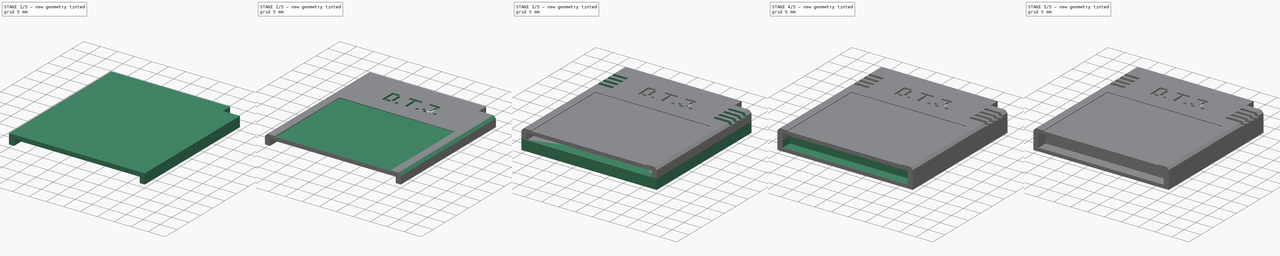
[diagram: build sequence overview — one tinted view per stage of 5, left to right]
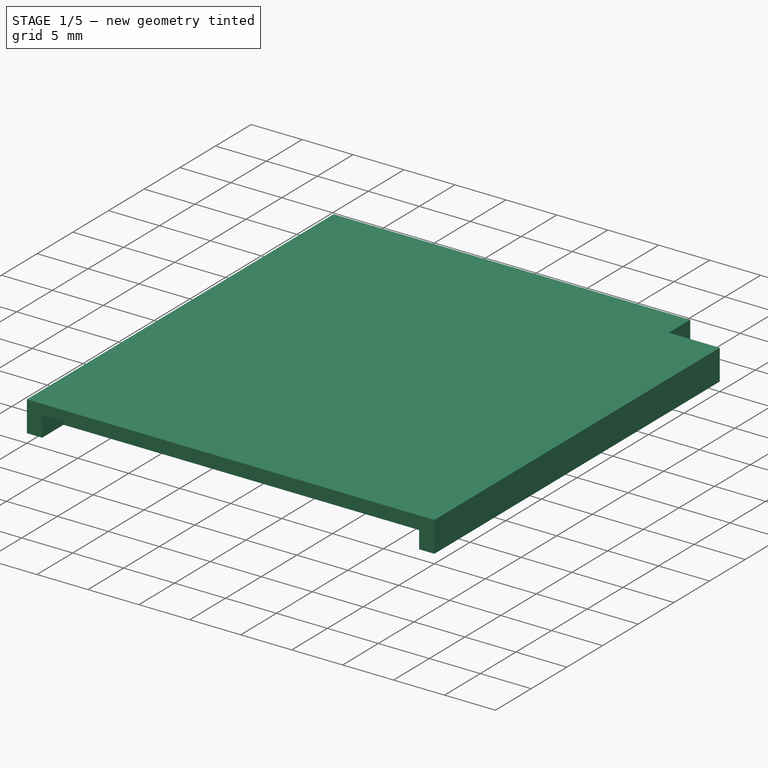
[diagram: stage 1 of 5 — iso view after this stage's code; geometry added in this stage tinted green]
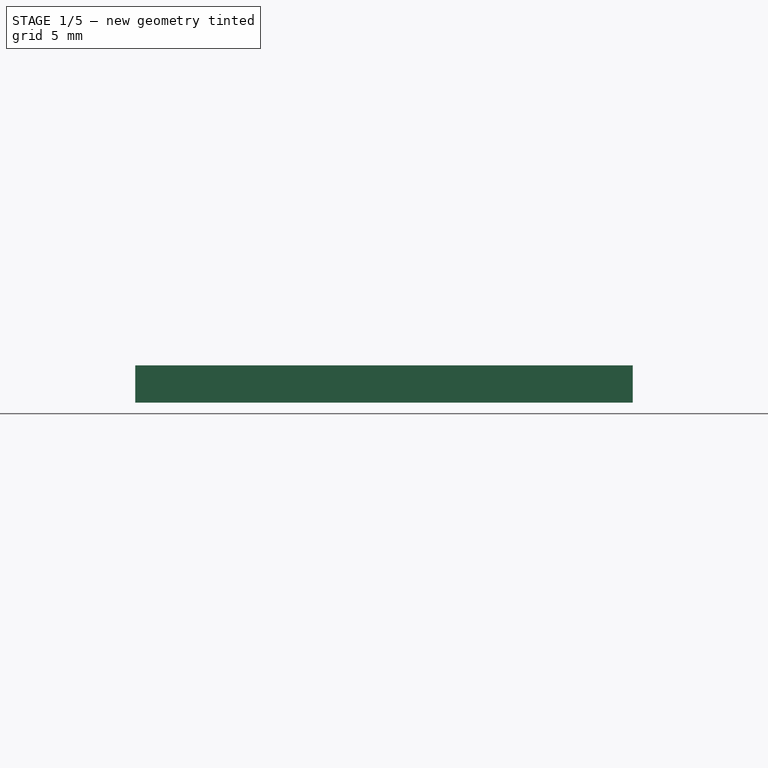
[diagram: stage 1 of 5 — front view after this stage's code; geometry added in this stage tinted green]
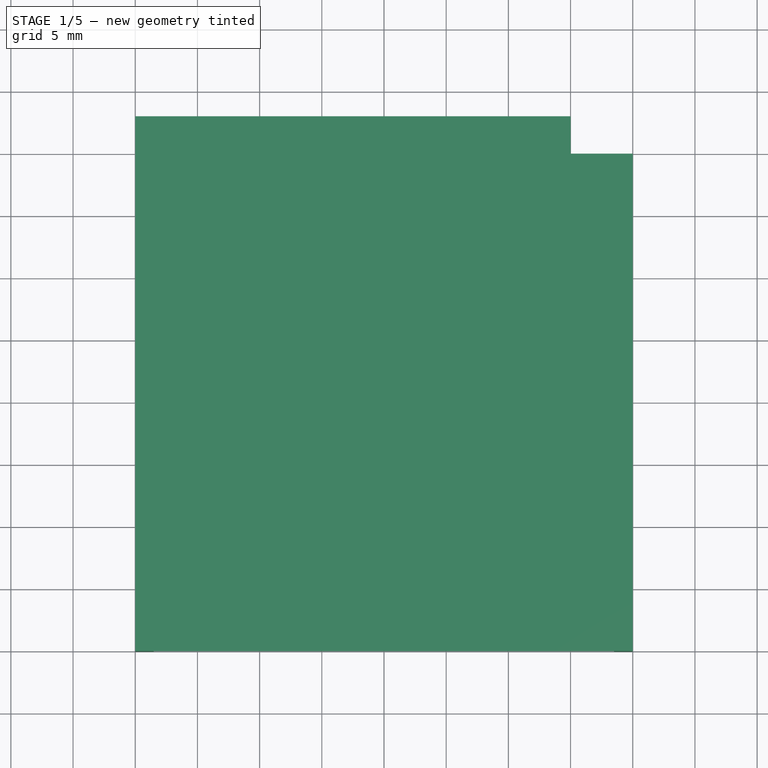
[diagram: stage 1 of 5 — top view after this stage's code; geometry added in this stage tinted green]
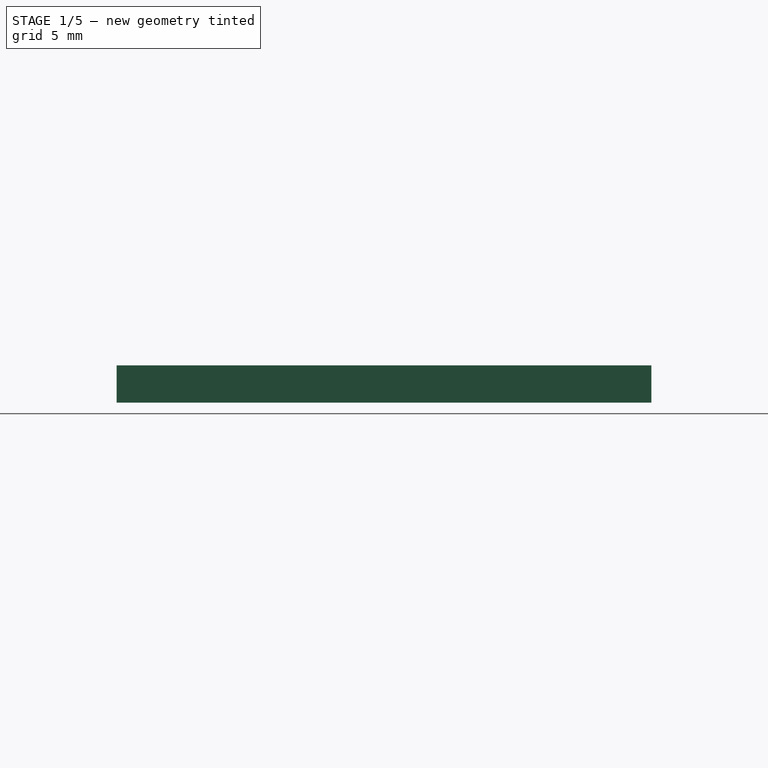
[diagram: stage 1 of 5 — right view after this stage's code; geometry added in this stage tinted green]
FCSTD DOCUMENT  (FreeCAD 0.16RUnknown)
Label: cartucho-pendrive
License: All rights reserved
LicenseURL: http://es.wikipedia.org/wiki/Todos_los_derechos_reservados
objects: Sketcher::SketchObject×14, PartDesign::Pocket×9, PartDesign::Pad×6, Drawing::FeatureViewPart×3, PartDesign::Chamfer×2, PartDesign::Fillet×1, Part::Part2DObjectPython×1, Part::Cut×1, Drawing::FeaturePage×1
note: 49 computed .brp shape members not serialized (recipe doc carries the construction recipe); baked Part::Feature solids carry a one-line shape summary decoded from their .brp

FEATURE [Sketcher::SketchObject] Sketch007
  Placement = pos=(0,0,3) rot=(0,0,1;0rad)
  sketch-geometry (8):
    g0: LineSegment StartX=0 StartY=0 StartZ=0 EndX=-20 EndY=0 EndZ=0
    g1: LineSegment StartX=-20 StartY=43 StartZ=0 EndX=15 EndY=43 EndZ=0
    g2: LineSegment StartX=15 StartY=43 StartZ=0 EndX=15 EndY=40 EndZ=0
    g3: LineSegment StartX=15 StartY=40 StartZ=0 EndX=20 EndY=40 EndZ=0
    g4: LineSegment StartX=20 StartY=40 StartZ=0 EndX=20 EndY=0 EndZ=0
    g5: LineSegment StartX=20 StartY=0 StartZ=0 EndX=0 EndY=0 EndZ=0
    g6: LineSegment StartX=-20 StartY=0 StartZ=0 EndX=-20 EndY=40 EndZ=0
    g7: LineSegment StartX=-20 StartY=40 StartZ=0 EndX=-20 EndY=43 EndZ=0
  constraints (23):
    c: Coincident(g-1,g0)
    c: Horizontal(g0)
    c: Horizontal(g1)
    c: Coincident(g1,g2)
    c: Coincident(g2,g3)
    c: Coincident(g3,g4)
    c: Vertical(g4)
    c: Coincident(g4,g5)
    c: Coincident(g5,g0)
    c: Horizontal(g5)
    c: Vertical(g2)
    c: Horizontal(g3)
    c: Symmetric(g0,g4,g-2)
    c: Coincident(g0,g6)
    c: Vertical(g6)
    c: Coincident(g6,g7)
    c: Coincident(g7,g1)
    c: Vertical(g7)
    c: Equal(g7,g2)
    c: DistanceX(g0,g0) = 20
    c: DistanceY(g2,g2) = 3
    c: DistanceX(g3,g3) = 5
    c: DistanceY(g4,g4) = 40
FEATURE [PartDesign::Pad] Pad003  label="Top-Base"
  Length = 3
  Length2 = 100
  Placement = pos=(0,0,3) rot=(0,0,1;0rad)
  Sketch = -> Sketch007
  Type = 0
FEATURE [Sketcher::SketchObject] Sketch008
  Placement = pos=(0,0,3) rot=(1,0,0;3.14159rad)
  Support = -> Pad003 [Face5]
  sketch-geometry (16):
    g0: LineSegment StartX=-7.5 StartY=-7.8 StartZ=0 EndX=7.5 EndY=-7.8 EndZ=0
    g1: LineSegment StartX=7.5 StartY=-7.8 StartZ=0 EndX=7.5 EndY=-31.5 EndZ=0
    g2: LineSegment StartX=7.5 StartY=-31.5 StartZ=0 EndX=6.5 EndY=-31.5 EndZ=0
    g3: LineSegment StartX=6.5 StartY=-31.5 StartZ=0 EndX=6.5 EndY=-32.2 EndZ=0
    g4: LineSegment StartX=6.5 StartY=-32.2 StartZ=0 EndX=7.5 EndY=-32.2 EndZ=0
    g5: LineSegment StartX=7.5 StartY=-32.2 StartZ=0 EndX=7.5 EndY=-41 EndZ=0
    g6: LineSegment StartX=-7.5 StartY=-41 StartZ=0 EndX=-7.5 EndY=-32.2 EndZ=0
    g7: LineSegment StartX=-7.5 StartY=-32.2 StartZ=0 EndX=-6.5 EndY=-32.2 EndZ=0
    g8: LineSegment StartX=-6.5 StartY=-32.2 StartZ=0 EndX=-6.5 EndY=-31.5 EndZ=0
    g9: LineSegment StartX=-6.5 StartY=-31.5 StartZ=0 EndX=-7.5 EndY=-31.5 EndZ=0
    g10: LineSegment StartX=-7.5 StartY=-31.5 StartZ=0 EndX=-7.5 EndY=-7.8 EndZ=0
    g11: LineSegment StartX=-7.5 StartY=-41 StartZ=0 EndX=-6.25 EndY=-41 EndZ=0
    g12: LineSegment StartX=-6.25 StartY=-41 StartZ=0 EndX=-6.25 EndY=-43 EndZ=0
    g13: LineSegment StartX=-6.25 StartY=-43 StartZ=0 EndX=6.25 EndY=-43 EndZ=0
    g14: LineSegment StartX=6.25 StartY=-43 StartZ=0 EndX=6.25 EndY=-41 EndZ=0
    g15: LineSegment StartX=6.25 StartY=-41 StartZ=0 EndX=7.5 EndY=-41 EndZ=0
  constraints (47):
    c: Coincident(g0,g1)
    c: Vertical(g1)
    c: Coincident(g1,g2)
    c: Horizontal(g2)
    c: Coincident(g2,g3)
    c: Vertical(g3)
    c: Coincident(g3,g4)
    c: Horizontal(g4)
    c: Coincident(g4,g5)
    c: Vertical(g5)
    c: Vertical(g6)
    c: Coincident(g6,g7)
    c: Horizontal(g7)
    c: Coincident(g7,g8)
    c: Coincident(g8,g9)
    c: Horizontal(g9)
    c: Coincident(g9,g10)
    c: Vertical(g10)
    c: Coincident(g0,g10)
    c: Symmetric(g0,g0,g-2)
    c: Symmetric(g2,g8,g-2)
    c: Symmetric(g5,g6,g-2)
    c: Equal(g7,g4)
    c: Equal(g9,g2)
    c: DistanceX(g0,g0) = 15
    c: DistanceY(g1,g1) = -23.7
    c: DistanceX(g4,g4) = 1
    c: DistanceY(g3,g3) = -0.7
    c: Equal(g3,g8)
    c: Equal(g1,g10)
    c: DistanceY(g6,g6) = -8.8
    c: Coincident(g11,g12)
    c: Vertical(g12)
    c: Coincident(g12,g13)
    c: Horizontal(g13)
    c: Coincident(g13,g14)
    c: Vertical(g14)
    c: Coincident(g14,g15)
    c: Coincident(g15,g5)
    c: Horizontal(g15)
    c: DistanceX(g13,g13) = 12.5
    c: Equal(g11,g15)
    c: Coincident(g6,g11)
    c: Horizontal(g11)
    c: DistanceY(g13,g5) = 2
    c: DistanceY(g12,g-1) = 43
    c: DistanceX(g6,g5) = 15
FEATURE [PartDesign::Pocket] Pocket004  label="Top-PCB-Hole"
  Length = 2
  Placement = pos=(0,0,3) rot=(0,0,1;0rad)
  Sketch = -> Sketch008
  Type = 0
FEATURE [PartDesign::Pocket] Pocket009
  Length = 2
  Placement = pos=(0,0,3) rot=(0,0,1;0rad)
  Sketch = -> Sketch009
  Type = 0
FEATURE [Sketcher::SketchObject] Sketch010
  Placement = pos=(0,0,3) rot=(1,0,0;3.14159rad)
  Support = -> Pocket009 [Face2]
  sketch-geometry (2):
    g0: Circle CenterX=-12.5 CenterY=-20 CenterZ=0 NormalX=0 NormalY=0 NormalZ=1 Radius=2
    g1: Circle CenterX=12.5 CenterY=-20 CenterZ=0 NormalX=0 NormalY=0 NormalZ=1 Radius=2
  constraints (5):
    c: Symmetric(g1,g0,g-2)
    c: Equal(g0,g1)
    c: Radius(g0) = 2
    c: DistanceX(g0,g1) = 25
    c: DistanceY(g1,g-1) = 20
FEATURE [PartDesign::Pocket] Pocket010
  Length = 1.5
  Placement = pos=(0,0,3) rot=(0,0,1;0rad)
  Sketch = -> Sketch010
  Type = 0
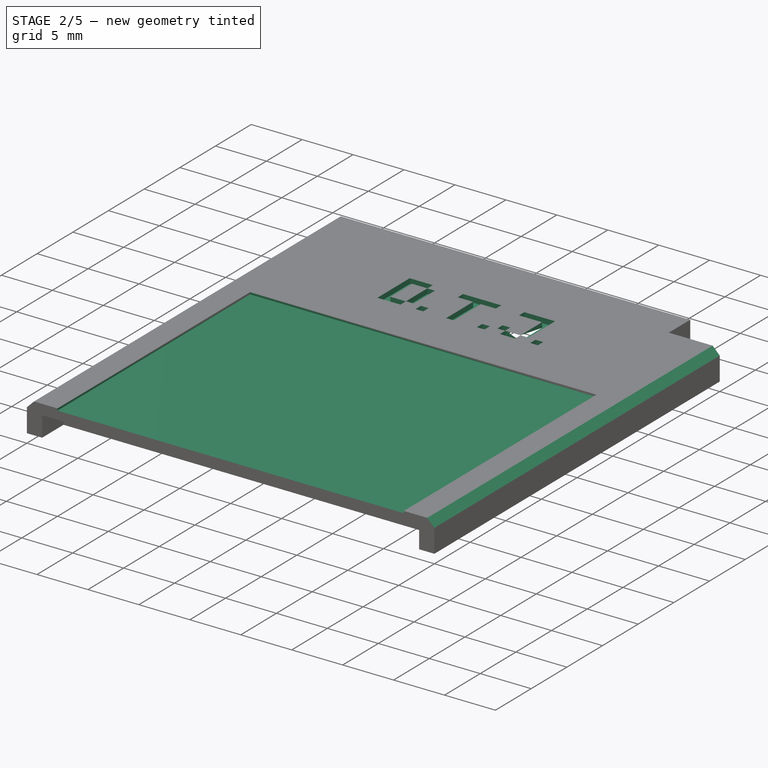
[diagram: stage 2 of 5 — iso view after this stage's code; geometry added in this stage tinted green]
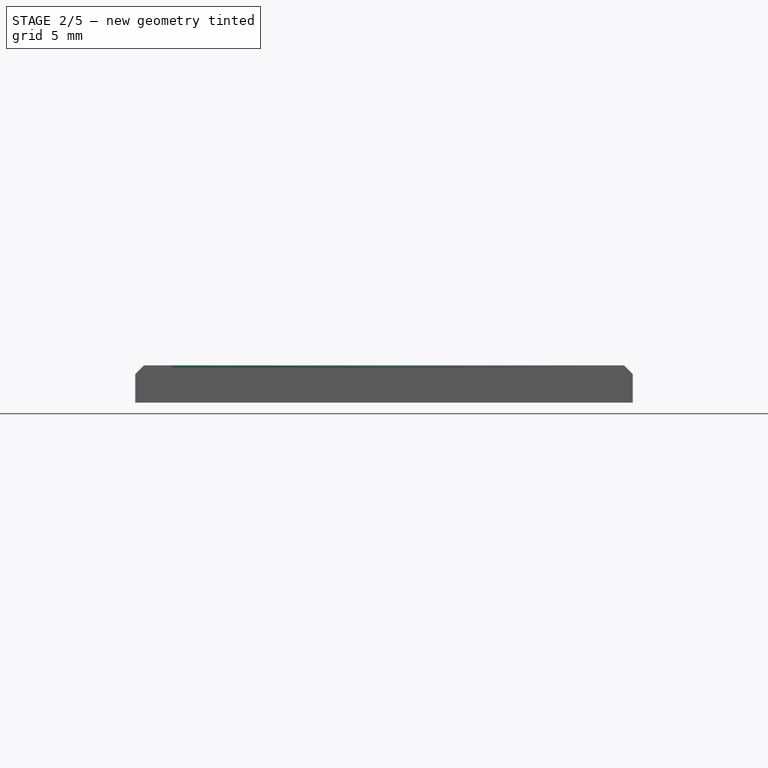
[diagram: stage 2 of 5 — front view after this stage's code; geometry added in this stage tinted green]
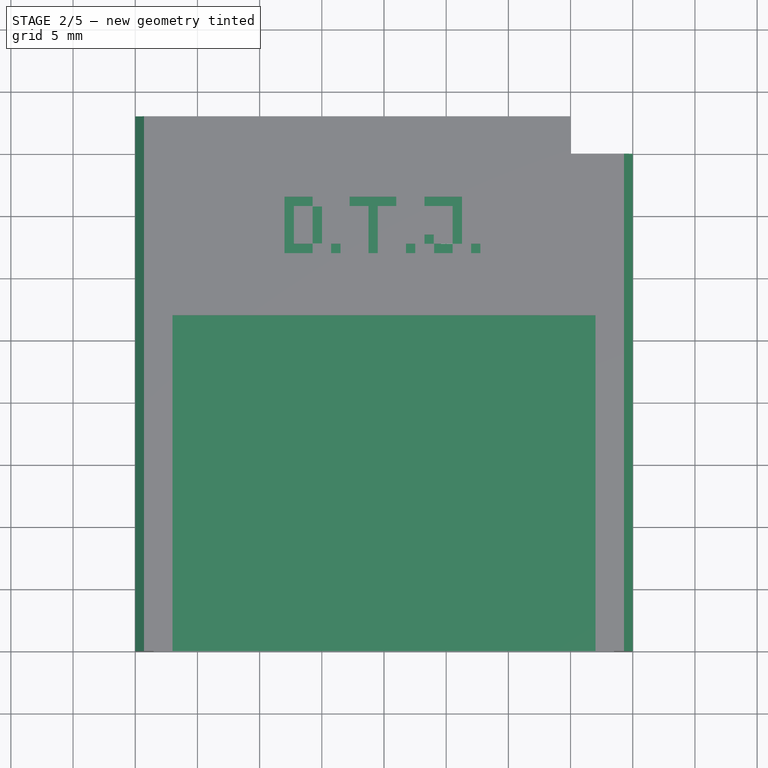
[diagram: stage 2 of 5 — top view after this stage's code; geometry added in this stage tinted green]
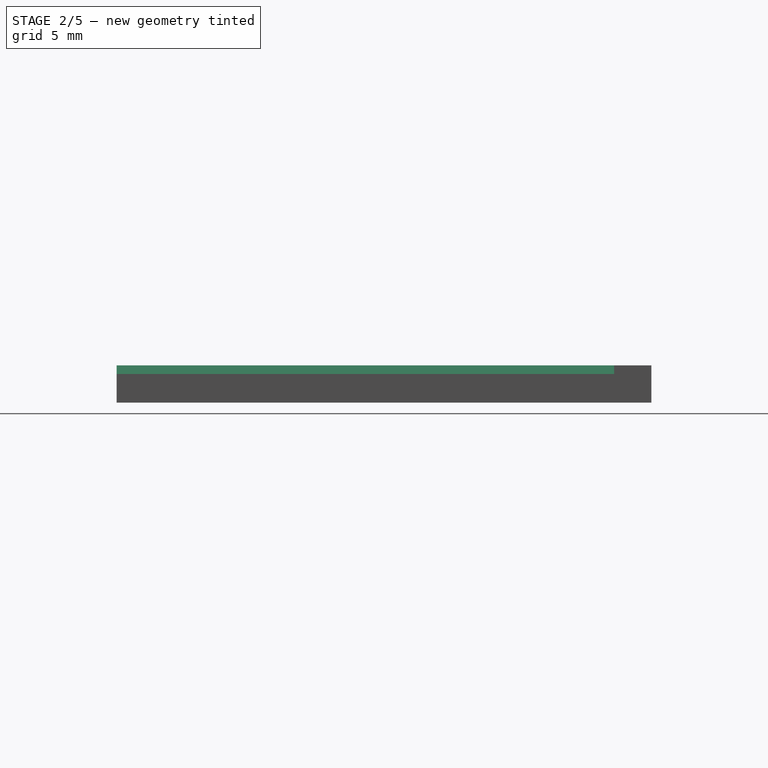
[diagram: stage 2 of 5 — right view after this stage's code; geometry added in this stage tinted green]
FEATURE [Sketcher::SketchObject] Sketch009
  Placement = pos=(0,0,3) rot=(1,0,0;3.14159rad)
  Support = -> Pocket004 [Face2]
  sketch-geometry (4):
    g0: LineSegment StartX=-18.5 StartY=0 StartZ=0 EndX=18.5 EndY=0 EndZ=0
    g1: LineSegment StartX=18.5 StartY=0 StartZ=0 EndX=18.5 EndY=-3 EndZ=0
    g2: LineSegment StartX=18.5 StartY=-3 StartZ=0 EndX=-18.5 EndY=-3 EndZ=0
    g3: LineSegment StartX=-18.5 StartY=-3 StartZ=0 EndX=-18.5 EndY=0 EndZ=0
  constraints (12):
    c: Coincident(g0,g1)
    c: Coincident(g1,g2)
    c: Coincident(g2,g3)
    c: Coincident(g3,g0)
    c: Horizontal(g0)
    c: Horizontal(g2)
    c: Vertical(g1)
    c: Vertical(g3)
    c: PointOnObject(g0,g-1)
    c: Symmetric(g1,g2,g-2)
    c: DistanceX(g2,g2) = 37
    c: DistanceY(g1,g1) = 3
FEATURE [Part::Part2DObjectPython] ShapeString  label="Text"  # Draft 2D object (typed FeaturePython)
  FontFile = <userpath>/.fonts/Pixeled.ttf
  Placement = pos=(-8,32,5.5) rot=(0,0,1;0rad)
  Size = 10
  String = D.T.J.
  Tracking = 0
FEATURE [PartDesign::Pad] Pad004
  Length = 1
  Length2 = 100
  Placement = pos=(-8,32,5.5) rot=(0,0,1;0rad)
  Sketch = -> ShapeString
  Type = 0
FEATURE [Part::Cut] Cut  label="Cut-Text"
  Base = -> Pocket010
  Tool = -> Pad004
FEATURE [Sketcher::SketchObject] Sketch012
  Placement = pos=(0,0,6) rot=(0,0,1;0rad)
  Support = -> Cut [Face7]
  sketch-geometry (4):
    g0: LineSegment StartX=-17 StartY=0 StartZ=0 EndX=17 EndY=0 EndZ=0
    g1: LineSegment StartX=17 StartY=0 StartZ=0 EndX=17 EndY=27 EndZ=0
    g2: LineSegment StartX=17 StartY=27 StartZ=0 EndX=-17 EndY=27 EndZ=0
    g3: LineSegment StartX=-17 StartY=27 StartZ=0 EndX=-17 EndY=0 EndZ=0
  constraints (12):
    c: Coincident(g0,g1)
    c: Coincident(g1,g2)
    c: Coincident(g2,g3)
    c: Coincident(g3,g0)
    c: Horizontal(g0)
    c: Horizontal(g2)
    c: Vertical(g1)
    c: Vertical(g3)
    c: PointOnObject(g0,g-1)
    c: DistanceY(g3,g3) = 27
    c: DistanceX(g2,g2) = 34
    c: Symmetric(g0,g0,g-2)
FEATURE [PartDesign::Pocket] Pocket011
  Length = 0.2
  Sketch = -> Sketch012
  Type = 0
FEATURE [PartDesign::Chamfer] Chamfer001
  Base = -> Pocket011 [Edge56,Edge54]
  Size = 0.7
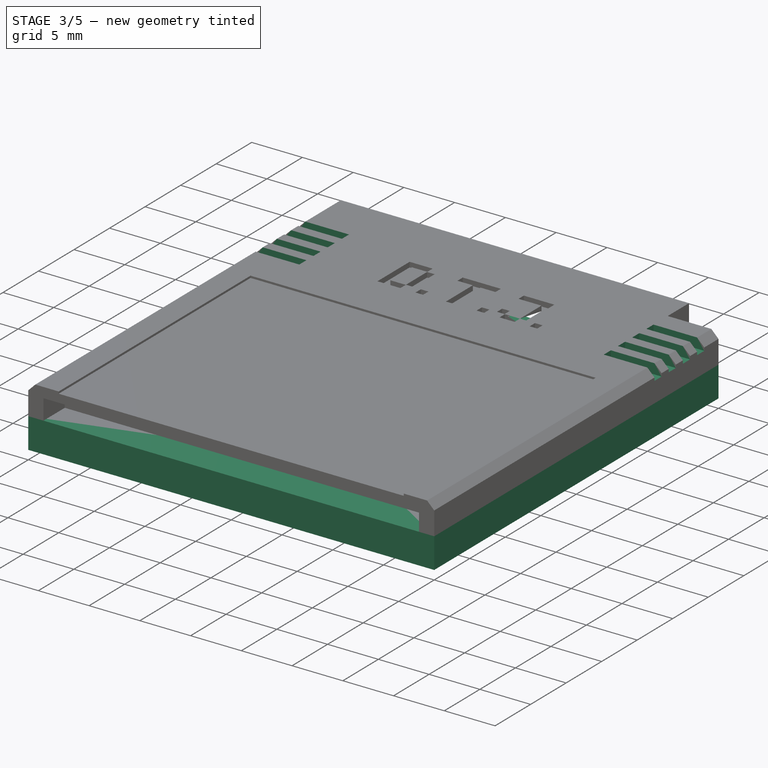
[diagram: stage 3 of 5 — iso view after this stage's code; geometry added in this stage tinted green]
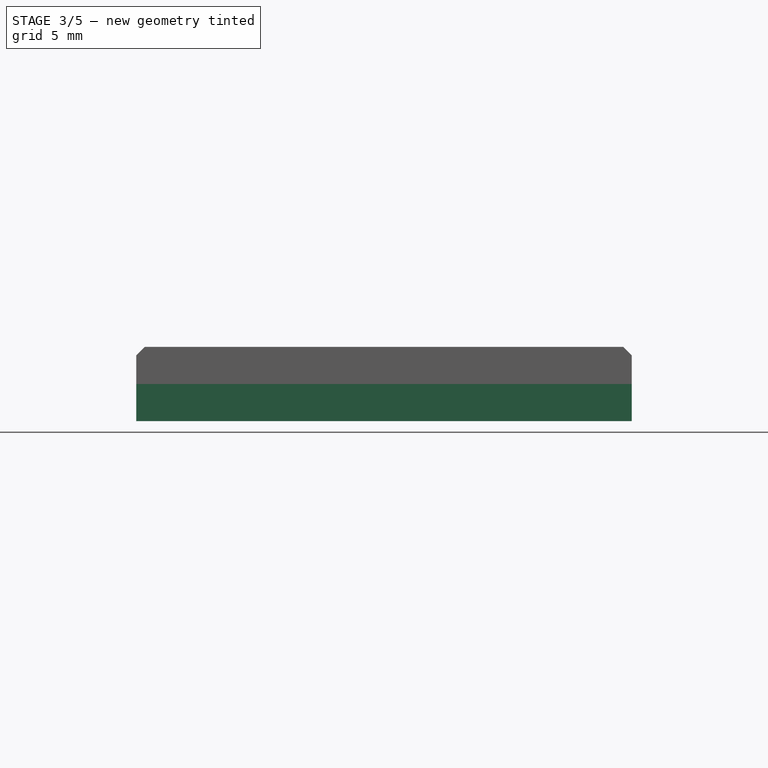
[diagram: stage 3 of 5 — front view after this stage's code; geometry added in this stage tinted green]
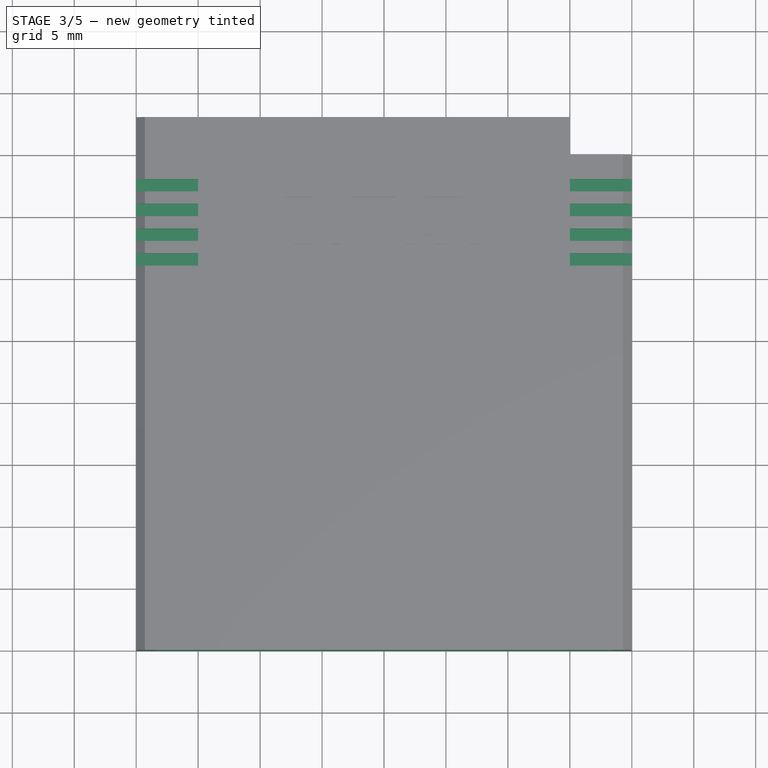
[diagram: stage 3 of 5 — top view after this stage's code; geometry added in this stage tinted green]
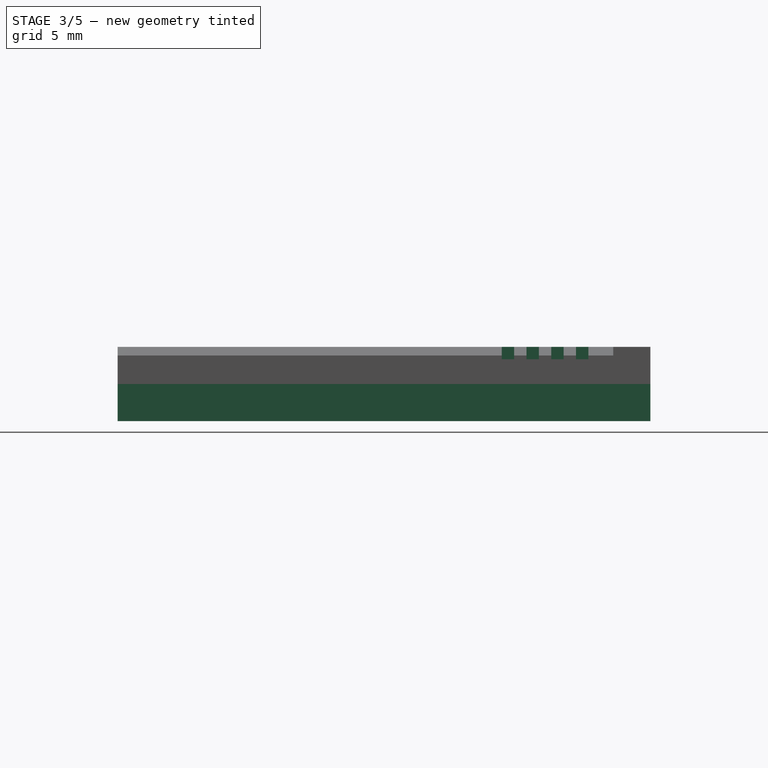
[diagram: stage 3 of 5 — right view after this stage's code; geometry added in this stage tinted green]
FEATURE [Sketcher::SketchObject] Sketch
  sketch-geometry (8):
    g0: LineSegment StartX=0 StartY=0 StartZ=0 EndX=-20 EndY=0 EndZ=0
    g1: LineSegment StartX=-20 StartY=43 StartZ=0 EndX=15 EndY=43 EndZ=0
    g2: LineSegment StartX=15 StartY=43 StartZ=0 EndX=15 EndY=40 EndZ=0
    g3: LineSegment StartX=15 StartY=40 StartZ=0 EndX=20 EndY=40 EndZ=0
    g4: LineSegment StartX=20 StartY=40 StartZ=0 EndX=20 EndY=0 EndZ=0
    g5: LineSegment StartX=20 StartY=0 StartZ=0 EndX=0 EndY=0 EndZ=0
    g6: LineSegment StartX=-20 StartY=0 StartZ=0 EndX=-20 EndY=40 EndZ=0
    g7: LineSegment StartX=-20 StartY=40 StartZ=0 EndX=-20 EndY=43 EndZ=0
  constraints (23):
    c: Coincident(g-1,g0)
    c: Horizontal(g0)
    c: Horizontal(g1)
    c: Coincident(g1,g2)
    c: Coincident(g2,g3)
    c: Coincident(g3,g4)
    c: Vertical(g4)
    c: Coincident(g4,g5)
    c: Coincident(g5,g0)
    c: Horizontal(g5)
    c: Vertical(g2)
    c: Horizontal(g3)
    c: Symmetric(g0,g4,g-2)
    c: Coincident(g0,g6)
    c: Vertical(g6)
    c: Coincident(g6,g7)
    c: Coincident(g7,g1)
    c: Vertical(g7)
    c: Equal(g7,g2)
    c: DistanceX(g0,g0) = 20
    c: DistanceY(g2,g2) = 3
    c: DistanceX(g3,g3) = 5
    c: DistanceY(g4,g4) = 40
FEATURE [PartDesign::Pad] Pad  label="Bottom-base"
  Length = 3
  Length2 = 100
  Sketch = -> Sketch
  Type = 0
FEATURE [Sketcher::SketchObject] Sketch001
  ExternalGeometry = -> [Pad]
  Placement = pos=(0,0,3) rot=(0,0,1;0rad)
  Support = -> Pad [Face6]
  sketch-geometry (16):
    g0: LineSegment StartX=-7.5 StartY=7.8 StartZ=0 EndX=7.5 EndY=7.8 EndZ=0
    g1: LineSegment StartX=7.5 StartY=7.8 StartZ=0 EndX=7.5 EndY=31.5 EndZ=0
    g2: LineSegment StartX=7.5 StartY=31.5 StartZ=0 EndX=6.5 EndY=31.5 EndZ=0
    g3: LineSegment StartX=6.5 StartY=31.5 StartZ=0 EndX=6.5 EndY=32.2 EndZ=0
    g4: LineSegment StartX=6.5 StartY=32.2 StartZ=0 EndX=7.5 EndY=32.2 EndZ=0
    g5: LineSegment StartX=7.5 StartY=32.2 StartZ=0 EndX=7.5 EndY=41 EndZ=0
    g6: LineSegment StartX=-7.5 StartY=41 StartZ=0 EndX=-7.5 EndY=32.2 EndZ=0
    g7: LineSegment StartX=-7.5 StartY=32.2 StartZ=0 EndX=-6.5 EndY=32.2 EndZ=0
    g8: LineSegment StartX=-6.5 StartY=32.2 StartZ=0 EndX=-6.5 EndY=31.5 EndZ=0
    g9: LineSegment StartX=-6.5 StartY=31.5 StartZ=0 EndX=-7.5 EndY=31.5 EndZ=0
    g10: LineSegment StartX=-7.5 StartY=31.5 StartZ=0 EndX=-7.5 EndY=7.8 EndZ=0
    g11: LineSegment StartX=-7.5 StartY=41 StartZ=0 EndX=-6.25 EndY=41 EndZ=0
    g12: LineSegment StartX=-6.25 StartY=41 StartZ=0 EndX=-6.25 EndY=43 EndZ=0
    g13: LineSegment StartX=-6.25 StartY=43 StartZ=0 EndX=6.25 EndY=43 EndZ=0
    g14: LineSegment StartX=6.25 StartY=43 StartZ=0 EndX=6.25 EndY=41 EndZ=0
    g15: LineSegment StartX=6.25 StartY=41 StartZ=0 EndX=7.5 EndY=41 EndZ=0
  constraints (47):
    c: Coincident(g0,g1)
    c: Vertical(g1)
    c: Coincident(g1,g2)
    c: Horizontal(g2)
    c: Coincident(g2,g3)
    c: Vertical(g3)
    c: Coincident(g3,g4)
    c: Horizontal(g4)
    c: Coincident(g4,g5)
    c: Vertical(g5)
    c: Vertical(g6)
    c: Coincident(g6,g7)
    c: Horizontal(g7)
    c: Coincident(g7,g8)
    c: Coincident(g8,g9)
    c: Horizontal(g9)
    c: Coincident(g9,g10)
    c: Vertical(g10)
    c: Coincident(g0,g10)
    c: Symmetric(g0,g0,g-2)
    c: Symmetric(g2,g8,g-2)
    c: Symmetric(g5,g6,g-2)
    c: Equal(g7,g4)
    c: Equal(g9,g2)
    c: DistanceX(g0,g0) = 15
    c: DistanceY(g1,g1) = 23.7
    c: DistanceX(g4,g4) = 1
    c: DistanceY(g3,g3) = 0.7
    c: Equal(g3,g8)
    c: Equal(g1,g10)
    c: DistanceY(g6,g6) = 8.8
    c: DistanceY(g5,g-3) = 2
    c: Coincident(g6,g11)
    c: Horizontal(g11)
    c: Coincident(g11,g12)
    c: PointOnObject(g12,g-3)
    c: Coincident(g12,g13)
    c: PointOnObject(g13,g-3)
    c: Coincident(g13,g14)
    c: Coincident(g14,g15)
    c: Coincident(g15,g5)
    c: Horizontal(g15)
    c: Vertical(g14)
    c: Vertical(g12)
    c: Equal(g11,g15)
    c: DistanceX(g6,g5) = 15
    c: DistanceX(g12,g13) = 12.5
FEATURE [PartDesign::Pocket] Pocket  label="Bottom-PCB-Hole"
  Length = 2.5
  Sketch = -> Sketch001
  Type = 0
FEATURE [Sketcher::SketchObject] Sketch014
  Placement = pos=(0,0,6) rot=(0,0,1;0rad)
  Support = -> Chamfer001 [Face2]
  sketch-geometry (32):
    g0: LineSegment StartX=-20 StartY=38 StartZ=0 EndX=-15 EndY=38 EndZ=0
    g1: LineSegment StartX=-15 StartY=38 StartZ=0 EndX=-15 EndY=37 EndZ=0
    g2: LineSegment StartX=-15 StartY=37 StartZ=0 EndX=-20 EndY=37 EndZ=0
    g3: LineSegment StartX=-20 StartY=37 StartZ=0 EndX=-20 EndY=38 EndZ=0
    g4: LineSegment StartX=-20 StartY=36 StartZ=0 EndX=-15 EndY=36 EndZ=0
    g5: LineSegment StartX=-15 StartY=36 StartZ=0 EndX=-15 EndY=35 EndZ=0
    g6: LineSegment StartX=-15 StartY=35 StartZ=0 EndX=-20 EndY=35 EndZ=0
    g7: LineSegment StartX=-20 StartY=35 StartZ=0 EndX=-20 EndY=36 EndZ=0
    g8: LineSegment StartX=-20 StartY=34 StartZ=0 EndX=-15 EndY=34 EndZ=0
    g9: LineSegment StartX=-15 StartY=34 StartZ=0 EndX=-15 EndY=33 EndZ=0
    g10: LineSegment StartX=-15 StartY=33 StartZ=0 EndX=-20 EndY=33 EndZ=0
    g11: LineSegment StartX=-20 StartY=33 StartZ=0 EndX=-20 EndY=34 EndZ=0
    g12: LineSegment StartX=-20 StartY=32 StartZ=0 EndX=-15 EndY=32 EndZ=0
    g13: LineSegment StartX=-15 StartY=32 StartZ=0 EndX=-15 EndY=31 EndZ=0
    g14: LineSegment StartX=-15 StartY=31 StartZ=0 EndX=-20 EndY=31 EndZ=0
    g15: LineSegment StartX=-20 StartY=31 StartZ=0 EndX=-20 EndY=32 EndZ=0
    g16: LineSegment StartX=15 StartY=38 StartZ=0 EndX=20 EndY=38 EndZ=0
    g17: LineSegment StartX=20 StartY=38 StartZ=0 EndX=20 EndY=37 EndZ=0
    g18: LineSegment StartX=20 StartY=37 StartZ=0 EndX=15 EndY=37 EndZ=0
    g19: LineSegment StartX=15 StartY=37 StartZ=0 EndX=15 EndY=38 EndZ=0
    g20: LineSegment StartX=15 StartY=36 StartZ=0 EndX=20 EndY=36 EndZ=0
    g21: LineSegment StartX=20 StartY=36 StartZ=0 EndX=20 EndY=35 EndZ=0
    g22: LineSegment StartX=20 StartY=35 StartZ=0 EndX=15 EndY=35 EndZ=0
    g23: LineSegment StartX=15 StartY=35 StartZ=0 EndX=15 EndY=36 EndZ=0
    g24: LineSegment StartX=15 StartY=34 StartZ=0 EndX=20 EndY=34 EndZ=0
    g25: LineSegment StartX=20 StartY=34 StartZ=0 EndX=20 EndY=33 EndZ=0
    g26: LineSegment StartX=20 StartY=33 StartZ=0 EndX=15 EndY=33 EndZ=0
    g27: LineSegment StartX=15 StartY=33 StartZ=0 EndX=15 EndY=34 EndZ=0
    g28: LineSegment StartX=15 StartY=32 StartZ=0 EndX=20 EndY=32 EndZ=0
    g29: LineSegment StartX=20 StartY=32 StartZ=0 EndX=20 EndY=31 EndZ=0
    g30: LineSegment StartX=20 StartY=31 StartZ=0 EndX=15 EndY=31 EndZ=0
    g31: LineSegment StartX=15 StartY=31 StartZ=0 EndX=15 EndY=32 EndZ=0
  constraints (92):
    c: Coincident(g0,g1)
    c: Coincident(g1,g2)
    c: Coincident(g2,g3)
    c: Coincident(g3,g0)
    c: Horizontal(g0)
    c: Horizontal(g2)
    c: Vertical(g1)
    c: Vertical(g3)
    c: Coincident(g4,g5)
    c: Coincident(g5,g6)
    c: Coincident(g6,g7)
    c: Coincident(g7,g4)
    c: Horizontal(g4)
    c: Horizontal(g6)
    c: Vertical(g5)
    c: Vertical(g7)
    c: Coincident(g8,g9)
    c: Coincident(g9,g10)
    c: Coincident(g10,g11)
    c: Coincident(g11,g8)
    c: Horizontal(g8)
    c: Horizontal(g10)
    c: Vertical(g9)
    c: Vertical(g11)
    c: Coincident(g12,g13)
    c: Coincident(g13,g14)
    c: Coincident(g14,g15)
    c: Coincident(g15,g12)
    c: Horizontal(g12)
    c: Horizontal(g14)
    c: Vertical(g13)
    c: Vertical(g15)
    c: Coincident(g16,g17)
    c: Coincident(g17,g18)
    c: Coincident(g18,g19)
    c: Coincident(g19,g16)
    c: Horizontal(g16)
    c: Horizontal(g18)
    c: Vertical(g17)
    c: Vertical(g19)
    c: Coincident(g20,g21)
    c: Coincident(g21,g22)
    c: Coincident(g22,g23)
    c: Coincident(g23,g20)
    c: Horizontal(g20)
    c: Horizontal(g22)
    c: Vertical(g21)
    c: Vertical(g23)
    c: Coincident(g24,g25)
    c: Coincident(g25,g26)
    c: Coincident(g26,g27)
    c: Coincident(g27,g24)
    c: Horizontal(g24)
    c: Horizontal(g26)
    c: Vertical(g25)
    c: Vertical(g27)
    c: Coincident(g28,g29)
    c: Coincident(g29,g30)
    c: Coincident(g30,g31)
    c: Coincident(g31,g28)
    c: Horizontal(g28)
    c: Horizontal(g30)
    c: Vertical(g29)
    c: Vertical(g31)
    c: Equal(g14,g10)
    c: Equal(g10,g6)
    c: Equal(g6,g2)
    c: Equal(g2,g18)
    c: Equal(g18,g22)
    c: Equal(g22,g26)
    c: Equal(g26,g30)
    c: Equal(g31,g27)
    c: Equal(g27,g23)
    c: Equal(g23,g19)
    c: Equal(g19,g1)
    c: Equal(g1,g5)
    c: Equal(g5,g9)
    c: Equal(g9,g13)
    c: Symmetric(g13,g30,g-2)
    c: Symmetric(g9,g26,g-2)
    c: Symmetric(g5,g22,g-2)
    c: Symmetric(g1,g18,g-2)
    c: DistanceX(g0,g0) = 5
    c: DistanceY(g3,g3) = 1
    c: DistanceY(g4,g2) = 1
    c: DistanceY(g8,g6) = 1
    c: DistanceY(g12,g10) = 1
    c: DistanceX(g10,g12) = 0
    c: DistanceX(g8,g6) = 0
    c: DistanceX(g2,g4) = 0
    c: DistanceY(g-1,g14) = 31
    c: DistanceX(g0,g16) = 40
FEATURE [PartDesign::Pocket] Pocket012  label="TOP"
  Length = 1
  Sketch = -> Sketch014
  Type = 0
FEATURE [Drawing::FeatureViewPart] View
  Direction = (1,1,1)
  HiddenWidth = 0.15
  LineWidth = 0.35
  Rotation = 0
  Scale = 2
  ShowHiddenLines = false
  ShowSmoothLines = false
  Source = -> Pad005
  Tolerance = 0.05
  ViewResult = <blob: 5404 chars omitted>
  Visible = true
  X = 140
  Y = 150
FEATURE [Drawing::FeatureViewPart] View001
  Direction = (1,1,1)
  HiddenWidth = 0.15
  LineWidth = 0.35
  Rotation = 0
  Scale = 2
  ShowHiddenLines = false
  ShowSmoothLines = true
  Source = -> Pocket012
  Tolerance = 0.05
  ViewResult = <blob: 12083 chars omitted>
  Visible = true
  X = 80
  Y = 150
FEATURE [Drawing::FeatureViewPart] View002
  Direction = (0,0,1)
  HiddenWidth = 0.15
  LineWidth = 0.35
  Rotation = 0
  Scale = 3
  ShowHiddenLines = false
  ShowSmoothLines = false
  Source = -> Pocket012
  Tolerance = 0.05
  ViewResult = <blob: 7609 chars omitted>
  Visible = true
  X = 300
  Y = 200
FEATURE [Drawing::FeaturePage] Page
  EditableTexts = AUTHOR NAME | CREATION DATE | SUPERVISOR NAME | CHECK DATE | SCALE | WEIGHT | NUMBER | SHEET | TITLE | SUBTITLE
  Group = -> [View,View001,View002]
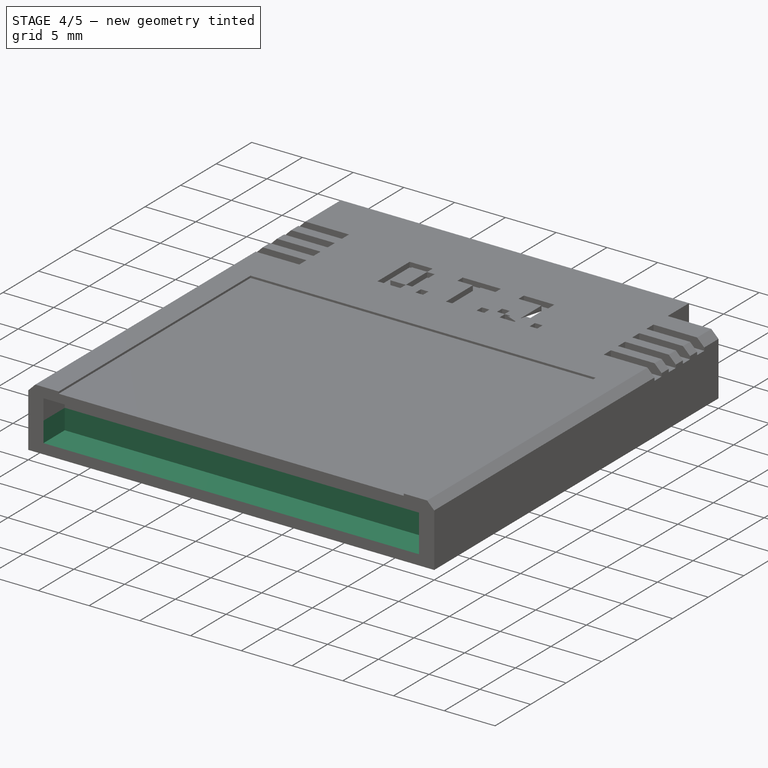
[diagram: stage 4 of 5 — iso view after this stage's code; geometry added in this stage tinted green]
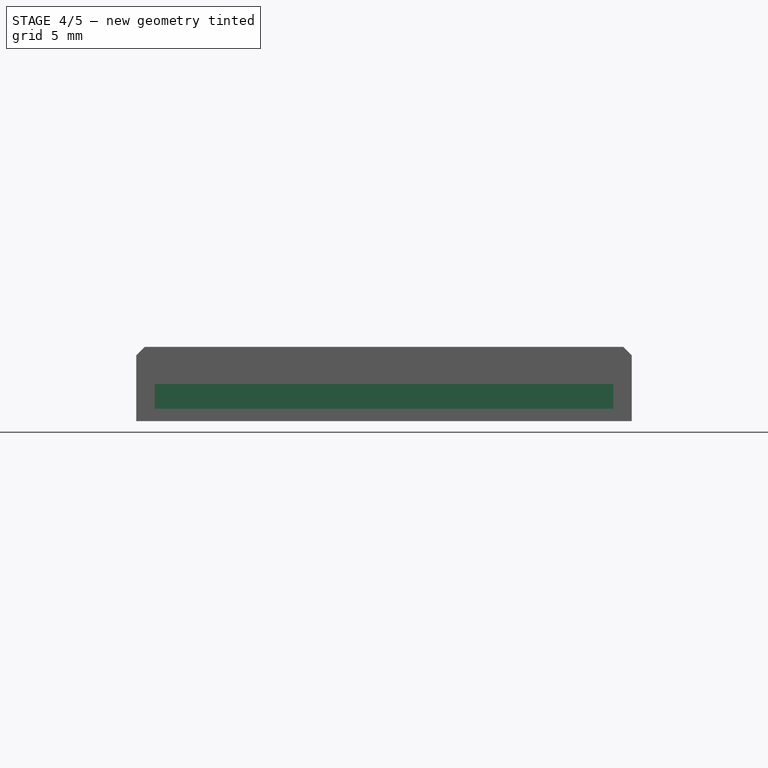
[diagram: stage 4 of 5 — front view after this stage's code; geometry added in this stage tinted green]
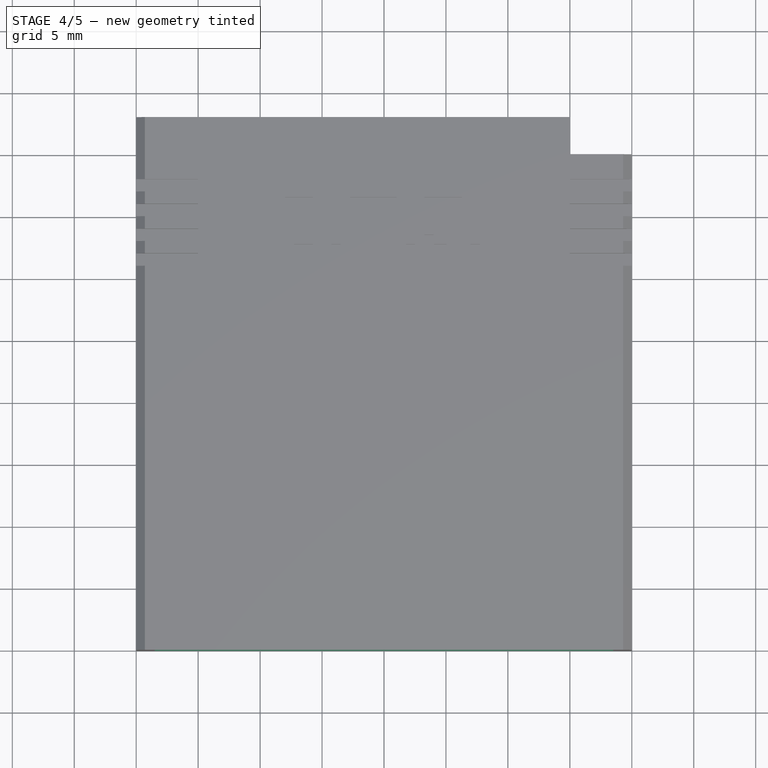
[diagram: stage 4 of 5 — top view after this stage's code; geometry added in this stage tinted green]
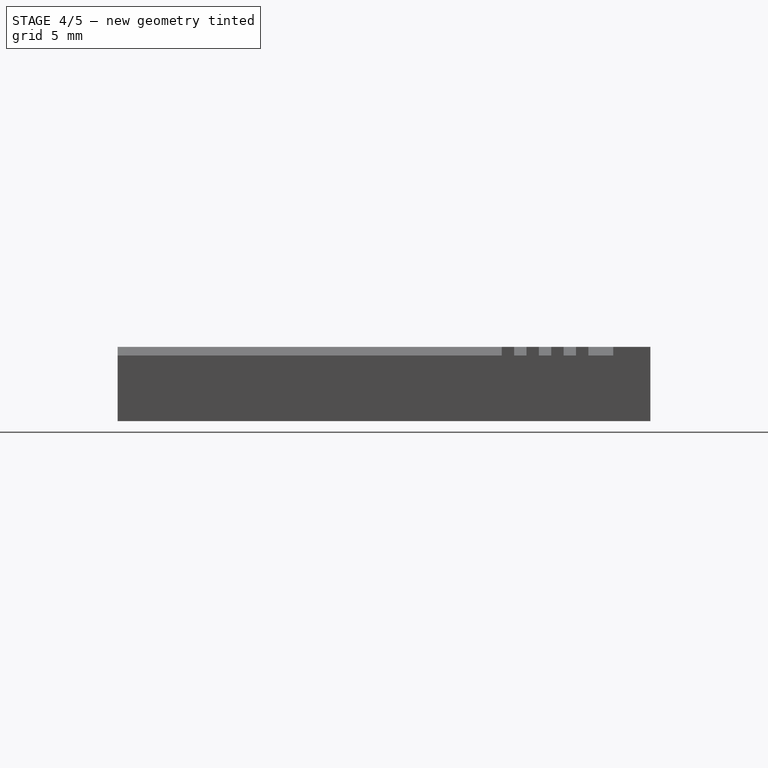
[diagram: stage 4 of 5 — right view after this stage's code; geometry added in this stage tinted green]
FEATURE [Sketcher::SketchObject] Sketch002
  Placement = pos=(0,0,3) rot=(0,0,1;0rad)
  Support = -> Pocket [Face4]
  sketch-geometry (4):
    g0: LineSegment StartX=-18.5 StartY=0 StartZ=0 EndX=18.5 EndY=0 EndZ=0
    g1: LineSegment StartX=18.5 StartY=0 StartZ=0 EndX=18.5 EndY=3 EndZ=0
    g2: LineSegment StartX=18.5 StartY=3 StartZ=0 EndX=-18.5 EndY=3 EndZ=0
    g3: LineSegment StartX=-18.5 StartY=3 StartZ=0 EndX=-18.5 EndY=0 EndZ=0
  constraints (12):
    c: Coincident(g0,g1)
    c: Coincident(g1,g2)
    c: Coincident(g2,g3)
    c: Coincident(g3,g0)
    c: Horizontal(g0)
    c: Horizontal(g2)
    c: Vertical(g1)
    c: Vertical(g3)
    c: PointOnObject(g0,g-1)
    c: DistanceX(g0,g0) = 37
    c: DistanceY(g3,g3) = 3
    c: Symmetric(g2,g1,g-2)
FEATURE [PartDesign::Pocket] Pocket001
  Length = 2
  Sketch = -> Sketch002
  Type = 0
FEATURE [Sketcher::SketchObject] Sketch003
  Placement = pos=(0,0,3) rot=(0,0,1;0rad)
  Support = -> Pocket001 [Face4]
  sketch-geometry (2):
    g0: Circle CenterX=-12.5 CenterY=20 CenterZ=0 NormalX=0 NormalY=0 NormalZ=1 Radius=1.8
    g1: Circle CenterX=12.5 CenterY=20 CenterZ=0 NormalX=0 NormalY=0 NormalZ=1 Radius=1.8
  constraints (5):
    c: Symmetric(g0,g1,g-2)
    c: Equal(g0,g1)
    c: Radius(g0) = 1.8
    c: DistanceX(g0,g1) = 25
    c: DistanceY(g-1,g0) = 20
FEATURE [PartDesign::Pad] Pad001
  Length = 1
  Length2 = 100
  Sketch = -> Sketch003
  Type = 0
FEATURE [Sketcher::SketchObject] Sketch004
  Placement = pos=(0,0,0) rot=(1,0,0;3.14159rad)
  Support = -> Pad001 [Face2]
  sketch-geometry (1):
    g0: Circle CenterX=0 CenterY=-20 CenterZ=0 NormalX=0 NormalY=0 NormalZ=1 Radius=2
  constraints (3):
    c: PointOnObject(g0,g-2)
    c: Radius(g0) = 2
    c: DistanceY(g0,g-1) = 20
FEATURE [PartDesign::Pocket] Pocket002
  Length = 0.2
  Sketch = -> Sketch004
  Type = 0
FEATURE [Sketcher::SketchObject] Sketch005
  Placement = pos=(-6.5,0,0) rot=(0.57735,0.57735,0.57735;2.0944rad)
  Support = -> Pocket002 [Face28]
  sketch-geometry (1):
    g0: Circle CenterX=0 CenterY=-20 CenterZ=0 NormalX=0 NormalY=0 NormalZ=1 Radius=1.2
  constraints (3):
    c: PointOnObject(g0,g-2)
    c: Radius(g0) = 1.2
    c: DistanceY(g0,g-1) = 20
FEATURE [PartDesign::Pad] Pad002
  Length = 0.2
  Length2 = 100
  Sketch = -> Sketch005
  Type = 0
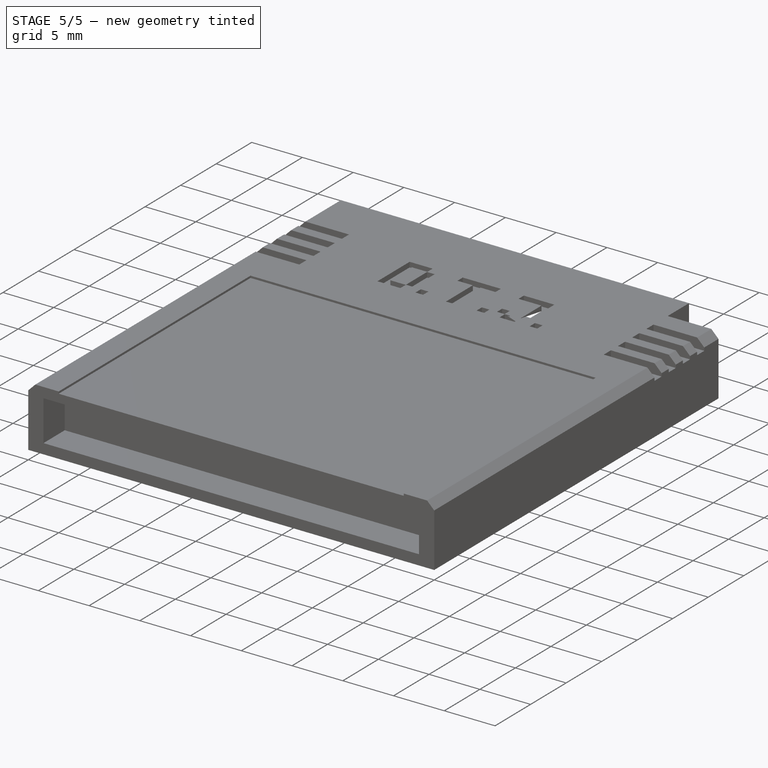
[diagram: stage 5 of 5 — iso view after this stage's code; geometry added in this stage tinted green]
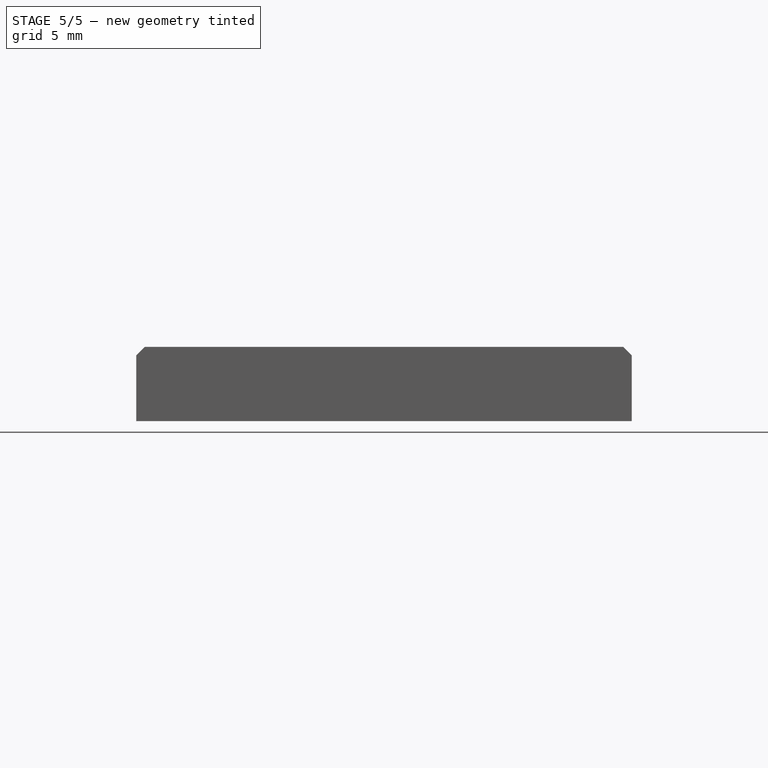
[diagram: stage 5 of 5 — front view after this stage's code; geometry added in this stage tinted green]
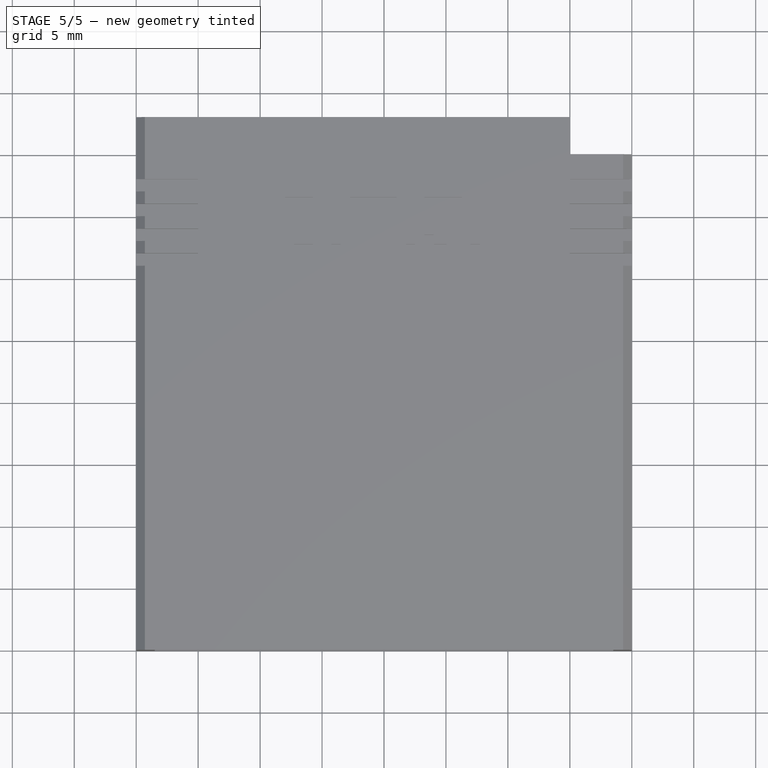
[diagram: stage 5 of 5 — top view after this stage's code; geometry added in this stage tinted green]
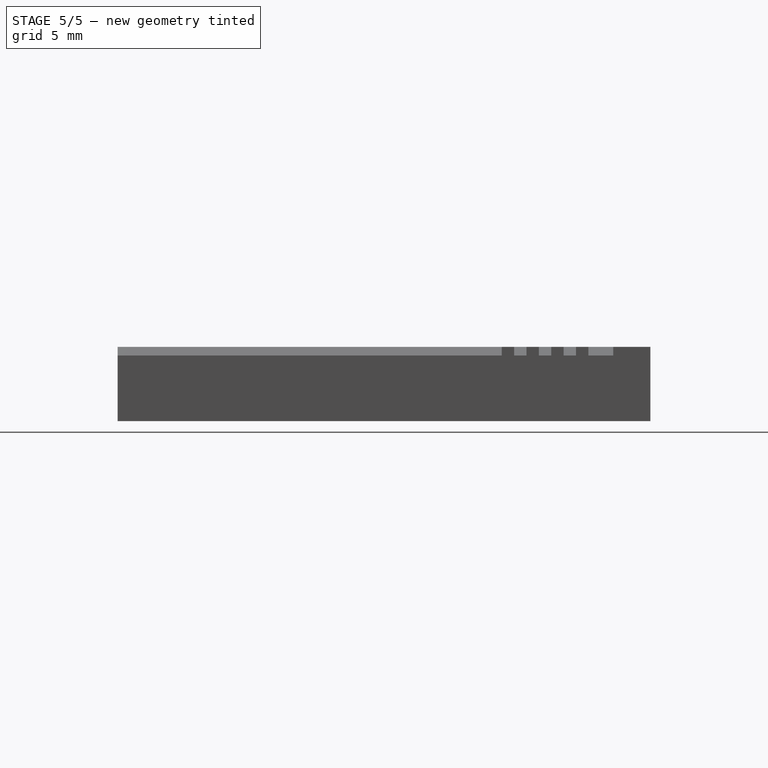
[diagram: stage 5 of 5 — right view after this stage's code; geometry added in this stage tinted green]
FEATURE [PartDesign::Fillet] Fillet
  Base = -> Pad002 [Edge78]
  Radius = 0.19
FEATURE [Sketcher::SketchObject] Sketch006
  Placement = pos=(7.5,0,0) rot=(0.57735,-0.57735,-0.57735;2.0944rad)
  Support = -> Fillet [Face4]
  sketch-geometry (12):
    g0: LineSegment StartX=-0.75 StartY=-19.75 StartZ=0 EndX=-0.25 EndY=-19.75 EndZ=0
    g1: LineSegment StartX=0.75 StartY=-19.75 StartZ=0 EndX=0.75 EndY=-20.25 EndZ=0
    g2: LineSegment StartX=0.75 StartY=-20.25 StartZ=0 EndX=0.25 EndY=-20.25 EndZ=0
    g3: LineSegment StartX=-0.75 StartY=-20.25 StartZ=0 EndX=-0.75 EndY=-19.75 EndZ=0
    g4: LineSegment StartX=-0.25 StartY=-19.25 StartZ=0 EndX=0.25 EndY=-19.25 EndZ=0
    g5: LineSegment StartX=0.25 StartY=-19.25 StartZ=0 EndX=0.25 EndY=-19.75 EndZ=0
    g6: LineSegment StartX=0.25 StartY=-20.75 StartZ=0 EndX=-0.25 EndY=-20.75 EndZ=0
    g7: LineSegment StartX=-0.25 StartY=-20.75 StartZ=0 EndX=-0.25 EndY=-20.25 EndZ=0
    g8: LineSegment StartX=0.25 StartY=-19.75 StartZ=0 EndX=0.75 EndY=-19.75 EndZ=0
    g9: LineSegment StartX=-0.25 StartY=-19.75 StartZ=0 EndX=-0.25 EndY=-19.25 EndZ=0
    g10: LineSegment StartX=-0.25 StartY=-20.25 StartZ=0 EndX=-0.75 EndY=-20.25 EndZ=0
    g11: LineSegment StartX=0.25 StartY=-20.25 StartZ=0 EndX=0.25 EndY=-20.75 EndZ=0
  constraints (34):
    c: Coincident(g8,g1)
    c: Coincident(g1,g2)
    c: Coincident(g10,g3)
    c: Coincident(g3,g0)
    c: Horizontal(g0)
    c: Horizontal(g2)
    c: Vertical(g1)
    c: Vertical(g3)
    c: Coincident(g4,g5)
    c: Coincident(g11,g6)
    c: Coincident(g6,g7)
    c: Coincident(g9,g4)
    c: Horizontal(g4)
    c: Horizontal(g6)
    c: Vertical(g5)
    c: Vertical(g7)
    c: Equal(g3,g4)
    c: Equal(g0,g5)
    c: Symmetric(g10,g1,g-2)
    c: Symmetric(g4,g4,g-2)
    c: DistanceY(g3,g3) = 0.5
    c: DistanceY(g7,g9) = 1.5
    c: Tangent(g0,g8)
    c: Coincident(g9,g0)
    c: Tangent(g7,g9)
    c: Coincident(g10,g7)
    c: Tangent(g2,g10)
    c: Coincident(g5,g8)
    c: Coincident(g11,g2)
    c: Tangent(g5,g11)
    c: DistanceX(g3,g1) = 1.5
    c: Equal(g7,g9)
    c: Equal(g10,g2)
    c: DistanceY(g5,g-1) = 19.75
FEATURE [PartDesign::Pocket] Pocket003
  Length = 0.2
  Sketch = -> Sketch006
  Type = 0
FEATURE [PartDesign::Chamfer] Chamfer  label="Chamfer002"
  Base = -> Pocket003 [Edge85,Edge87]
  Size = 0.5
FEATURE [Sketcher::SketchObject] Sketch013
  ExternalGeometry = -> [Chamfer]
  Placement = pos=(0,0,0.2) rot=(1,0,0;3.14159rad)
  Support = -> Chamfer [Face37]
  sketch-geometry (1):
    g0: Circle CenterX=0 CenterY=-20 CenterZ=0 NormalX=0 NormalY=0 NormalZ=1 Radius=1.2
  constraints (3):
    c: PointOnObject(g0,g-2)
    c: Coincident(g0,g-3)
    c: Radius(g0) = 1.2
FEATURE [PartDesign::Pad] Pad005  label="BOTTOM"
  Length = 0.2
  Length2 = 100
  Sketch = -> Sketch013
  Type = 0
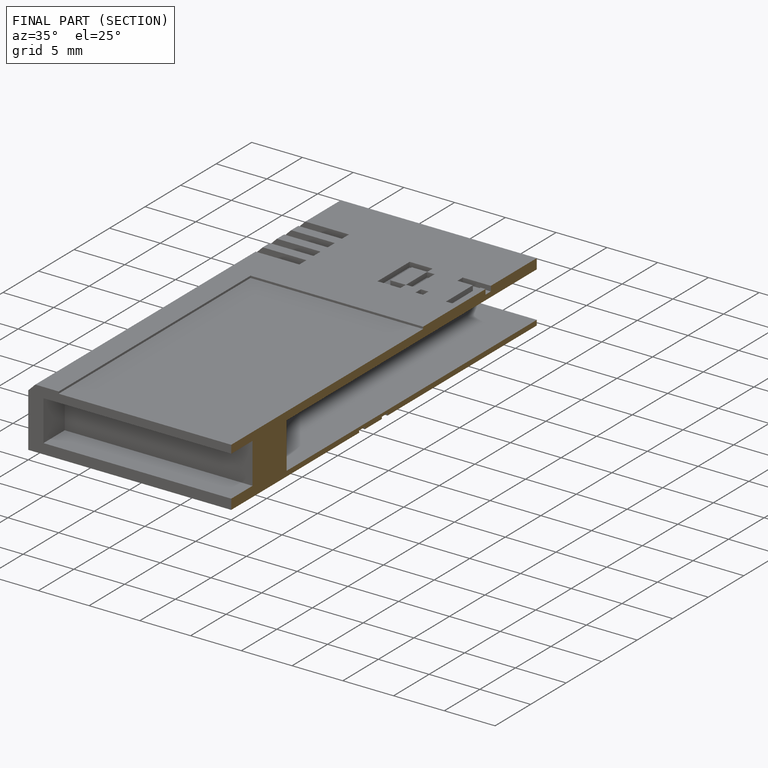
[diagram: finished part — half-section view (interior)]
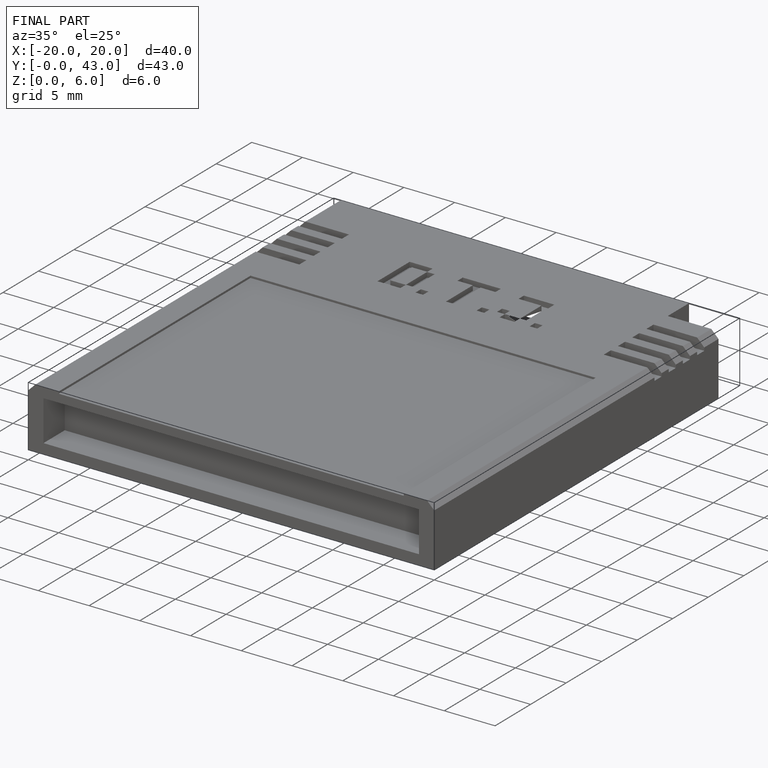
[diagram: finished part — iso view with bounding-box wireframe]
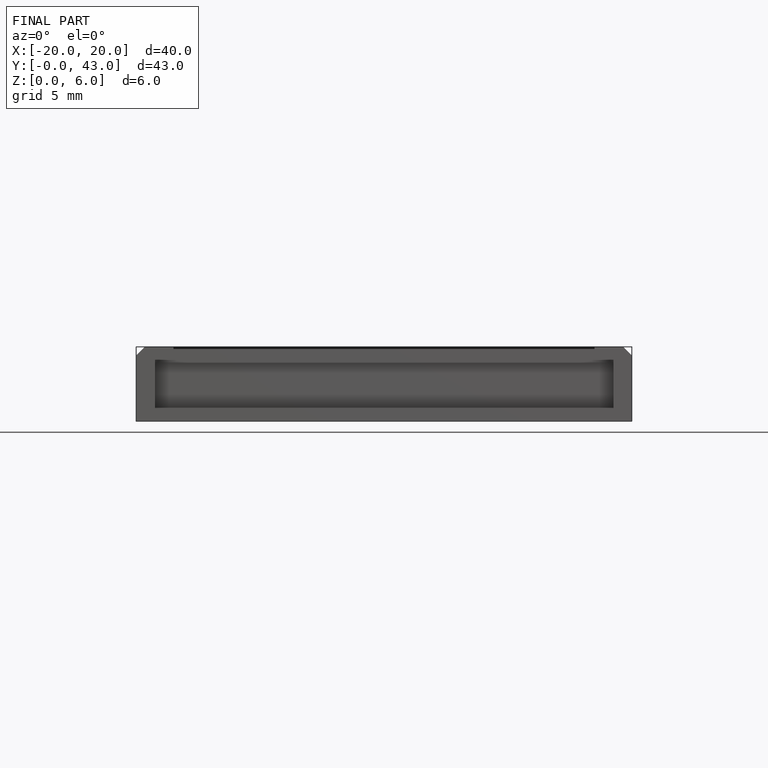
[diagram: finished part — front view with bounding-box wireframe]
